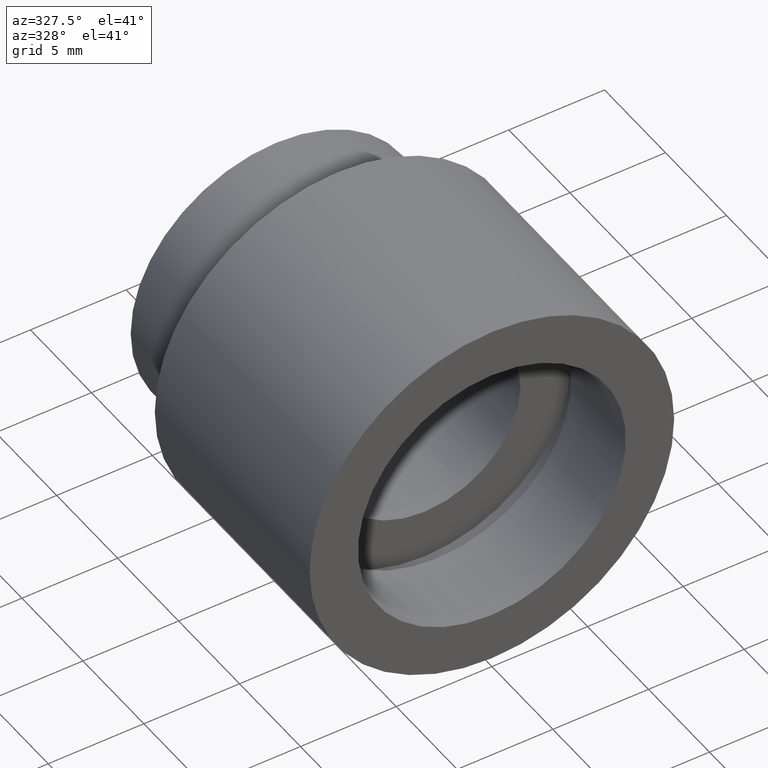
[diagram: clean part render]
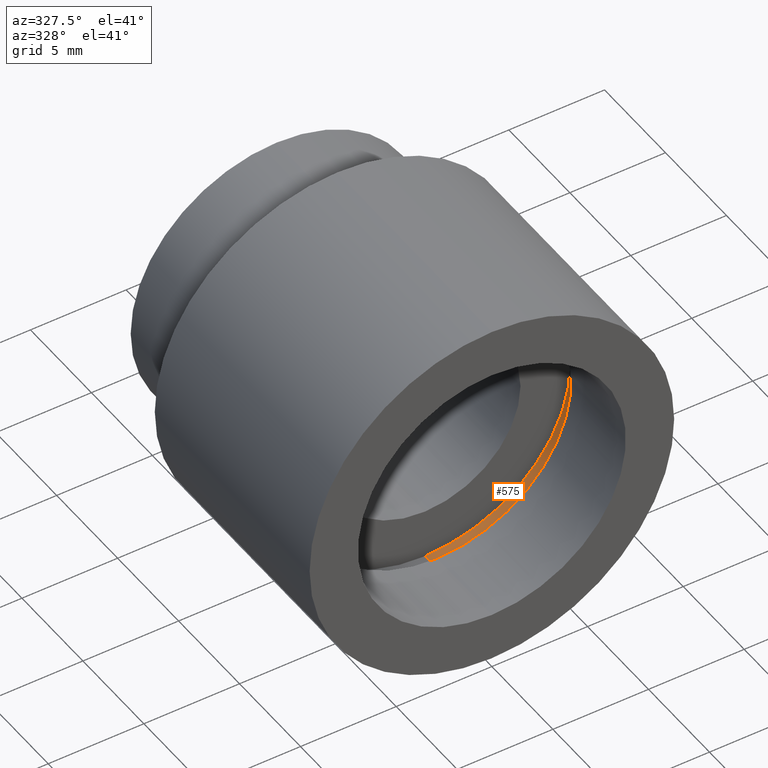
[diagram: same view with one face highlighted and labeled with its STEP entity id]
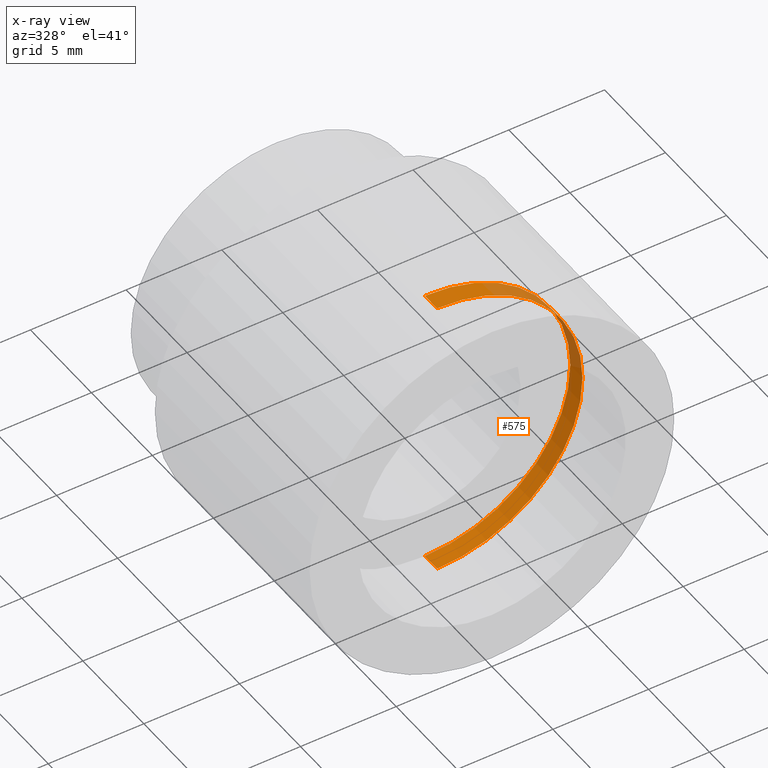
[diagram: x-ray of the same camera — body ghosted, the highlighted face saturated]
A machine part, auxiliary view. The second image highlights one B-rep face of the part: STEP entity #575.
The next image is the same camera in x-ray: the body ghosted, the highlighted face saturated — about 16% of this face is hidden behind the body in this view.
In plain terms, the highlighted cylindrical surface (partial cylindrical patch) has radius 7.6 mm, axis along (-0, 1, -0).
Its self-contained STEP definition (entity closure, byte-faithful):
#4 = DIRECTION ( 'NONE',  ( -0.0000000000000000000, 1.000000000000000000, -0.0000000000000000000 ) ) ;
#7 = EDGE_CURVE ( 'NONE', #131, #611, #307, .T. ) ;
#27 = EDGE_CURVE ( 'NONE', #131, #308, #257, .T. ) ;
#68 = AXIS2_PLACEMENT_3D ( 'NONE', #515, #318, #617 ) ;
#100 = CARTESIAN_POINT ( 'NONE',  ( 0.0000000000000000000, 4.499999999999976000, 0.0000000000000000000 ) ) ;
#114 = CARTESIAN_POINT ( 'NONE',  ( 0.0000000000000000000, 4.499999999999976000, 7.600000000000019200 ) ) ;
#131 = VERTEX_POINT ( 'NONE', #114 ) ;
#132 = CARTESIAN_POINT ( 'NONE',  ( 0.0000000000000000000, 5.499999999999976900, 7.600000000000020100 ) ) ;
#162 = ORIENTED_EDGE ( 'NONE', *, *, #7, .F. ) ;
#182 = LINE ( 'NONE', #273, #618 ) ;
#196 = DIRECTION ( 'NONE',  ( 0.0000000000000000000, 0.0000000000000000000, 1.000000000000000000 ) ) ;
#197 = ORIENTED_EDGE ( 'NONE', *, *, #456, .F. ) ;
#199 = AXIS2_PLACEMENT_3D ( 'NONE', #100, #388, #385 ) ;
#228 = EDGE_LOOP ( 'NONE', ( #197, #162, #393, #401 ) ) ;
#257 = LINE ( 'NONE', #438, #510 ) ;
#270 = EDGE_CURVE ( 'NONE', #308, #511, #313, .T. ) ;
#273 = CARTESIAN_POINT ( 'NONE',  ( 9.307315673519909100E-016, 161.3761669434274500, -7.600000000000020100 ) ) ;
#276 = FACE_OUTER_BOUND ( 'NONE', #228, .T. ) ;
#286 = CARTESIAN_POINT ( 'NONE',  ( 0.0000000000000000000, 161.3761669434274500, 0.0000000000000000000 ) ) ;
#307 = CIRCLE ( 'NONE', #199, 7.600000000000019200 ) ;
#308 = VERTEX_POINT ( 'NONE', #132 ) ;
#313 = CIRCLE ( 'NONE', #68, 7.600000000000020100 ) ;
#318 = DIRECTION ( 'NONE',  ( -0.0000000000000000000, 1.000000000000000000, -0.0000000000000000000 ) ) ;
#344 = DIRECTION ( 'NONE',  ( -0.0000000000000000000, 1.000000000000000000, -0.0000000000000000000 ) ) ;
#376 = CYLINDRICAL_SURFACE ( 'NONE', #547, 7.600000000000020100 ) ;
#379 = CARTESIAN_POINT ( 'NONE',  ( 9.307315673519909100E-016, 5.499999999999976900, -7.600000000000020100 ) ) ;
#385 = DIRECTION ( 'NONE',  ( 0.0000000000000000000, 0.0000000000000000000, 1.000000000000000000 ) ) ;
#388 = DIRECTION ( 'NONE',  ( -0.0000000000000000000, 1.000000000000000000, -0.0000000000000000000 ) ) ;
#393 = ORIENTED_EDGE ( 'NONE', *, *, #27, .T. ) ;
#401 = ORIENTED_EDGE ( 'NONE', *, *, #270, .T. ) ;
#438 = CARTESIAN_POINT ( 'NONE',  ( 0.0000000000000000000, 161.3761669434274500, 7.600000000000020100 ) ) ;
#456 = EDGE_CURVE ( 'NONE', #611, #511, #182, .T. ) ;
#502 = DIRECTION ( 'NONE',  ( -0.0000000000000000000, 1.000000000000000000, -0.0000000000000000000 ) ) ;
#510 = VECTOR ( 'NONE', #502, 1000.000000000000000 ) ;
#511 = VERTEX_POINT ( 'NONE', #379 ) ;
#515 = CARTESIAN_POINT ( 'NONE',  ( 0.0000000000000000000, 5.499999999999976900, 0.0000000000000000000 ) ) ;
#547 = AXIS2_PLACEMENT_3D ( 'NONE', #286, #344, #196 ) ;
#575 = ADVANCED_FACE ( 'NONE', ( #276 ), #376, .F. ) ;
#591 = CARTESIAN_POINT ( 'NONE',  ( 9.307315673519907200E-016, 4.499999999999976000, -7.600000000000019200 ) ) ;
#611 = VERTEX_POINT ( 'NONE', #591 ) ;
#617 = DIRECTION ( 'NONE',  ( 0.0000000000000000000, 0.0000000000000000000, 1.000000000000000000 ) ) ;
#618 = VECTOR ( 'NONE', #4, 1000.000000000000000 ) ;